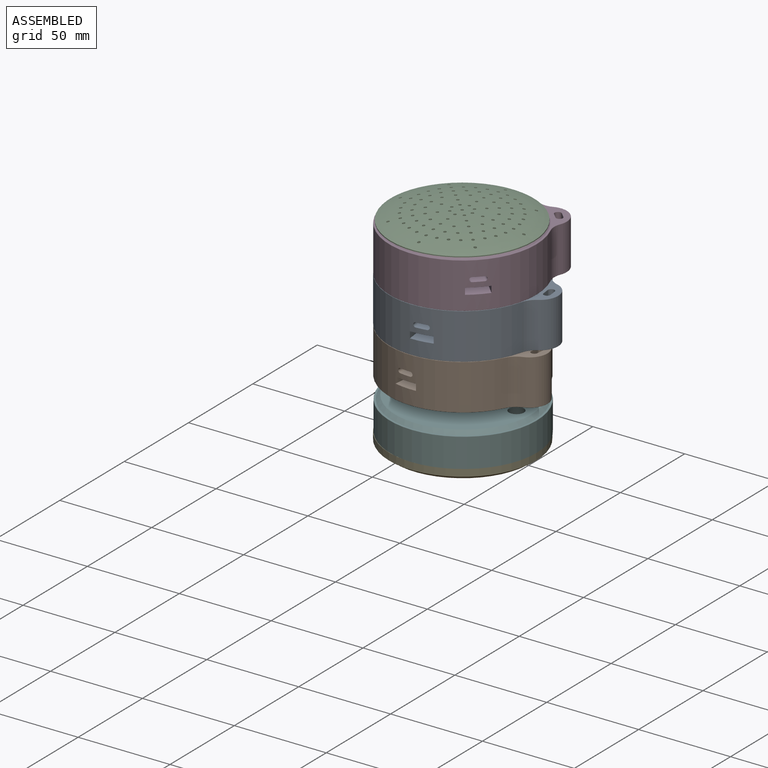
[diagram: assembled view]
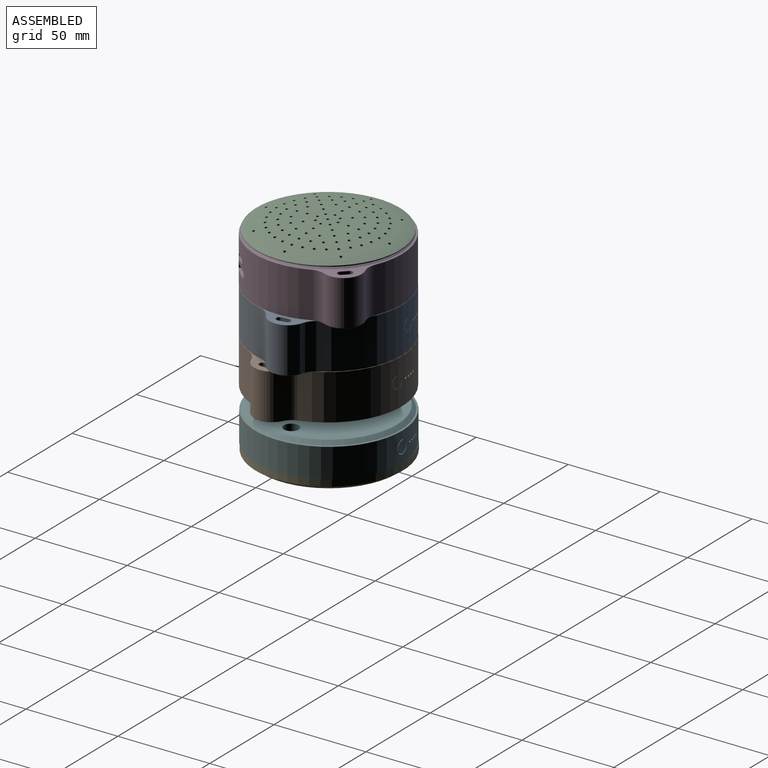
[diagram: assembled view, second angle]
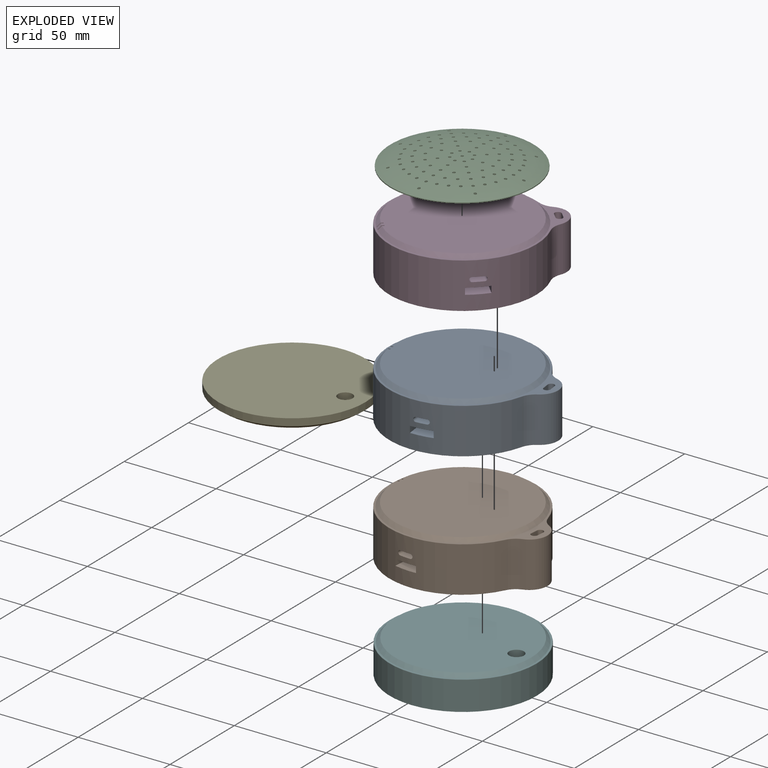
[diagram: exploded view]
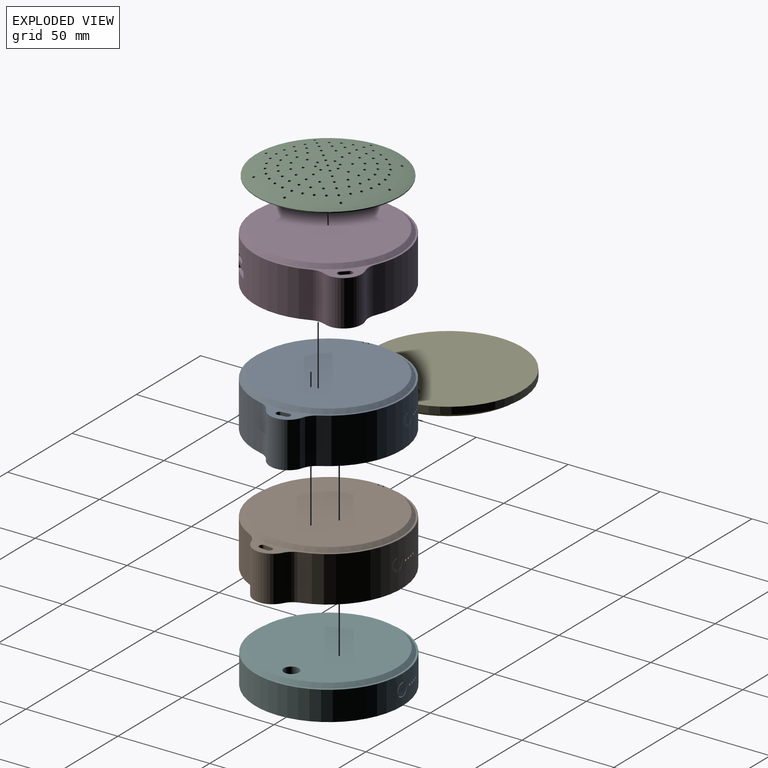
[diagram: exploded view, second angle]
ASSEMBLY  parts=6 mates=4
PART A: 60 faces, bbox 92.9x86.6x27 mm
  f0: cylinder r=40mm len=7.2mm, axis (0,0,-1), area 40.8mm2, adj f1
  f1: cylinder r=3.6mm len=40mm, axis (0,-1,0), area 902.9mm2, adj f0,f2
  f2: plane 7.2x7.2mm, normal (0,1,0), area 6.5mm2, adj f1,f3
  f3: cylinder r=3.3mm len=40mm, axis (0,-1,0), area 828mm2, adj f2,f4
  f4: cylinder r=40mm len=6.6mm, axis (0,0,-1), area 34.2mm2, adj f3
  f5: cylinder r=40mm len=80mm, axis (0,0,-1), area 5372.9mm2, adj f6,f7,f8,f9,f10,f11,f12,f13
  f6: cylinder r=10mm len=24.6mm, axis (0,0,1), area 195.7mm2, adj f5,f22,f23,f24
  f7: torus R=39.8mm, axis (0,0,1), area 69.3mm2, adj f5,f23,f25,f26
  f8: cylinder r=10mm len=24.6mm, axis (0,0,1), area 195.7mm2, adj f5,f22,f25,f27
  f9: torus R=39.8mm, axis (0,0,1), area 69.3mm2, adj f5,f24,f27,f28
  f10: cylinder r=1.25mm len=17.39mm, axis (0,1,0), area 68mm2, adj f5,f11,f13,f29
  f11: plane 17.5x5.8mm, normal (0,0,-1), area 101.3mm2, adj f5,f10,f12,f29
  f12: cylinder r=1.25mm len=17.39mm, axis (0,1,0), area 68mm2, adj f5,f11,f13,f29
  f13: plane 17.5x5.8mm, normal (0,0,1), area 101.3mm2, adj f5,f10,f12,f29
  f14: cylinder r=0.6mm len=39.11mm, axis (0,-1,0), area 146.9mm2, adj f5,f30
  f15: cylinder r=0.6mm len=38.49mm, axis (0,-1,0), area 144.4mm2, adj f5,f31
  f16: cylinder r=0.6mm len=37.69mm, axis (0,-1,0), area 141.2mm2, adj f5,f32
  f17: cylinder r=0.6mm len=39.56mm, axis (0,-1,0), area 148.8mm2, adj f5,f33
  f18: plane 17.5x12mm, normal (0,0,1), area 208.2mm2, adj f5,f19,f21,f34
  f19: plane 17.05x3.5mm, normal (1,0,0), area 59.7mm2, adj f5,f18,f20,f34
  f20: plane 17.5x12mm, normal (0,0,-1), area 208.2mm2, adj f5,f19,f21,f34
  f21: plane 17.05x3.5mm, normal (-1,0,0), area 59.7mm2, adj f5,f18,f20,f34
  f22: cylinder r=10mm len=24.6mm, axis (0,0,1), area 577.2mm2, adj f6,f8,f35,f36
  f23: torus R=10.2mm, axis (0,0,1), area 2.5mm2, adj f6,f7,f26,f35
  f24: torus R=10.2mm, axis (0,0,1), area 2.5mm2, adj f6,f9,f28,f36
  f25: torus R=10.2mm, axis (0,0,1), area 2.5mm2, adj f7,f8,f26,f35
  f26: plane 88.33x79.6mm, normal (0,0,-1), area 316.3mm2, adj f7,f23,f25,f35,f37,f38,f39,f40
  f27: torus R=10.2mm, axis (0,0,1), area 2.5mm2, adj f8,f9,f28,f36
  f28: plane 88.33x79.6mm, normal (0,0,1), area 320.7mm2, adj f9,f24,f27,f36,f42,f43,f44,f45
  f29: plane 8.3x2.5mm, normal (0,-1,0), area 19.4mm2, adj f10,f11,f12,f13
  f30: plane 1.2x1.2mm, normal (0,1,0), area 1.1mm2, adj f14
  f31: plane 1.2x1.2mm, normal (0,1,0), area 1.1mm2, adj f15
  f32: plane 1.2x1.2mm, normal (0,1,0), area 1.1mm2, adj f16
  f33: plane 1.2x1.2mm, normal (0,1,0), area 1.1mm2, adj f17
  f34: plane 12x3.5mm, normal (0,-1,0), area 42mm2, adj f18,f19,f20,f21
  f35: torus R=9.8mm, axis (0,0,1), area 7.3mm2, adj f22,f23,f25,f26
  f36: torus R=9.8mm, axis (0,0,1), area 7.3mm2, adj f22,f24,f27,f28
  f37: cylinder r=0.2mm len=4mm, axis (0,-1,0), area 1.3mm2, adj f26,f38,f40,f54
  f38: torus R=1.95mm, axis (0,0,1), area 1.8mm2, adj f26,f37,f39,f55
  f39: cylinder r=0.2mm len=4mm, axis (0,1,0), area 1.3mm2, adj f26,f38,f40,f56
  f40: torus R=1.95mm, axis (0,0,1), area 1.8mm2, adj f26,f37,f39,f57
  f41: cone r=37mm half-angle=45deg, axis (0,0,-1), area 675.3mm2, adj f26,f58
  f42: torus R=1.95mm, axis (0,0,1), area 1.8mm2, adj f28,f43,f45,f57
  f43: cylinder r=0.2mm len=4mm, axis (0,-1,0), area 1.3mm2, adj f28,f42,f44,f56
  f44: torus R=1.95mm, axis (0,0,1), area 1.8mm2, adj f28,f43,f45,f55
  f45: cylinder r=0.2mm len=4mm, axis (0,1,0), area 1.3mm2, adj f28,f42,f44,f54
  f46: cone r=37mm half-angle=45deg, axis (0,0,-1), area 665.7mm2, adj f28,f47,f53,f59
  f47: plane 3.17x2mm, normal (0,1,0), area 4.3mm2, adj f28,f46,f48,f59
  f48: plane 2x0.7mm, normal (-1,0,0), area 1.4mm2, adj f28,f47,f49,f59
  f49: plane 3.19x2mm, normal (0,-1,0), area 4.4mm2, adj f28,f48,f50,f59
  f50: cone r=37mm half-angle=45deg, axis (0,0,-1), area 5.7mm2, adj f28,f49,f51,f59
  f51: plane 3.19x2mm, normal (0,1,0), area 4.4mm2, adj f28,f50,f52,f59
  f52: plane 2x0.7mm, normal (-1,0,0), area 1.4mm2, adj f28,f51,f53,f59
  f53: plane 3.17x2mm, normal (0,-1,0), area 4.3mm2, adj f28,f46,f52,f59
  f54: plane 24.6x4mm, normal (1,0,0), area 98.4mm2, adj f37,f45,f55,f57
  f55: cylinder r=1.75mm len=24.6mm, axis (0,0,1), area 135.2mm2, adj f38,f44,f54,f56
  f56: plane 24.6x4mm, normal (-1,0,0), area 98.4mm2, adj f39,f43,f55,f57
  f57: cylinder r=1.75mm len=24.6mm, axis (0,0,1), area 135.2mm2, adj f40,f42,f54,f56
  f58: plane 74x74mm, normal (0,0,-1), area 4300.8mm2, adj f41
  f59: plane 74x74mm, normal (0,0,1), area 4299.2mm2, adj f46,f47,f48,f49,f50,f51,f52,f53
PART B: same geometry as A
PART C: 100 faces, bbox 78x78x5.2 mm
  f0: revolved ~77.97x77.91mm, area -1346.4mm2, adj f1,f3,f4,f5,f6,f7,f8,f9
  f1: cylinder r=39mm len=78mm, axis (0,0,1), area 122.5mm2, adj f0,f2
  f2: plane 78x78mm, normal (0,0,-1), area 4606.9mm2, adj f1,f3,f4,f5,f6,f7,f8,f9
  f3: cylinder r=0.75mm len=5.23mm, axis (0,0,-1), area 24.6mm2, adj f0,f2
  f4: cylinder r=0.75mm len=4.36mm, axis (0,0,-1), area 20.1mm2, adj f0,f2
  f5: cylinder r=0.75mm len=4.36mm, axis (0,0,-1), area 20.1mm2, adj f0,f2
  f6: cylinder r=0.75mm len=4.36mm, axis (0,0,-1), area 20.1mm2, adj f0,f2
  f7: cylinder r=0.75mm len=4.36mm, axis (0,0,-1), area 20.1mm2, adj f0,f2
  f8: cylinder r=0.75mm len=4.36mm, axis (0,0,-1), area 20.1mm2, adj f0,f2
  f9: cylinder r=0.75mm len=4.36mm, axis (0,0,-1), area 20.1mm2, adj f0,f2
  f10: cylinder r=0.75mm len=4.36mm, axis (0,0,-1), area 20.1mm2, adj f0,f2
  f11: cylinder r=0.75mm len=4.36mm, axis (0,0,-1), area 20.1mm2, adj f0,f2
  f12: cylinder r=0.75mm len=3.56mm, axis (0,0,-1), area 16.1mm2, adj f0,f2
  f13: cylinder r=0.75mm len=3.56mm, axis (0,0,-1), area 16.1mm2, adj f0,f2
  f14: cylinder r=0.75mm len=3.56mm, axis (0,0,-1), area 16.1mm2, adj f0,f2
  f15: cylinder r=0.75mm len=3.56mm, axis (0,0,-1), area 16.1mm2, adj f0,f2
  f16: cylinder r=0.75mm len=3.56mm, axis (0,0,-1), area 16.1mm2, adj f0,f2
  f17: cylinder r=0.75mm len=3.56mm, axis (0,0,-1), area 16.1mm2, adj f0,f2
  f18: cylinder r=0.75mm len=3.56mm, axis (0,0,-1), area 16.1mm2, adj f0,f2
  f19: cylinder r=0.75mm len=3.56mm, axis (0,0,-1), area 16.1mm2, adj f0,f2
  f20: cylinder r=0.75mm len=3.56mm, axis (0,0,-1), area 16.1mm2, adj f0,f2
  f21: cylinder r=0.75mm len=3.56mm, axis (0,0,-1), area 16.1mm2, adj f0,f2
  f22: cylinder r=0.75mm len=3.56mm, axis (0,0,-1), area 16.1mm2, adj f0,f2
  f23: cylinder r=0.75mm len=3.56mm, axis (0,0,-1), area 16.1mm2, adj f0,f2
  f24: cylinder r=0.75mm len=3.56mm, axis (0,0,-1), area 16.1mm2, adj f0,f2
  f25: cylinder r=0.75mm len=3.56mm, axis (0,0,-1), area 16.1mm2, adj f0,f2
  f26: cylinder r=0.75mm len=3.56mm, axis (0,0,-1), area 16.1mm2, adj f0,f2
  f27: cylinder r=0.75mm len=3.56mm, axis (0,0,-1), area 16.1mm2, adj f0,f2
  f28: cylinder r=0.75mm len=3.56mm, axis (0,0,-1), area 16.1mm2, adj f0,f2
  f29: cylinder r=0.75mm len=3.56mm, axis (0,0,-1), area 16.1mm2, adj f0,f2
  f30: cylinder r=0.75mm len=3.56mm, axis (0,0,-1), area 16.1mm2, adj f0,f2
  f31: cylinder r=0.75mm len=3.56mm, axis (0,0,-1), area 16.1mm2, adj f0,f2
  f32: cylinder r=0.75mm len=3.56mm, axis (0,0,-1), area 16.1mm2, adj f0,f2
  f33: cylinder r=0.75mm len=3.56mm, axis (0,0,-1), area 16.1mm2, adj f0,f2
  f34: cylinder r=0.75mm len=3.56mm, axis (0,0,-1), area 16.1mm2, adj f0,f2
  f35: cylinder r=0.75mm len=3.56mm, axis (0,0,-1), area 16.1mm2, adj f0,f2
  f36: cylinder r=0.75mm len=5.18mm, axis (0,0,-1), area 24.4mm2, adj f0,f2
  f37: cylinder r=0.75mm len=5.08mm, axis (0,0,-1), area 23.8mm2, adj f0,f2
  f38: cylinder r=0.75mm len=4.83mm, axis (0,0,-1), area 22.5mm2, adj f0,f2
  f39: cylinder r=0.75mm len=4.36mm, axis (0,0,-1), area 20.1mm2, adj f0,f2
  f40: cylinder r=0.75mm len=3.56mm, axis (0,0,-1), area 16.1mm2, adj f0,f2
  f41: cylinder r=0.75mm len=2.4mm, axis (0,0,-1), area 10.4mm2, adj f0,f2
  f42: cylinder r=0.75mm len=5.18mm, axis (0,0,-1), area 24.4mm2, adj f0,f2
  f43: cylinder r=0.75mm len=5.08mm, axis (0,0,-1), area 23.8mm2, adj f0,f2
  f44: cylinder r=0.75mm len=2.4mm, axis (0,0,-1), area 10.4mm2, adj f0,f2
  f45: cylinder r=0.75mm len=3.56mm, axis (0,0,-1), area 16.1mm2, adj f0,f2
  f46: cylinder r=0.75mm len=4.36mm, axis (0,0,-1), area 20.1mm2, adj f0,f2
  f47: cylinder r=0.75mm len=4.83mm, axis (0,0,-1), area 22.5mm2, adj f0,f2
  f48: cylinder r=0.75mm len=5.08mm, axis (0,0,-1), area 23.8mm2, adj f0,f2
  f49: cylinder r=0.75mm len=5.18mm, axis (0,0,-1), area 24.4mm2, adj f0,f2
  f50: cylinder r=0.75mm len=2.4mm, axis (0,0,-1), area 10.4mm2, adj f0,f2
  f51: cylinder r=0.75mm len=3.56mm, axis (0,0,-1), area 16.1mm2, adj f0,f2
  f52: cylinder r=0.75mm len=5.08mm, axis (0,0,-1), area 23.8mm2, adj f0,f2
  f53: cylinder r=0.75mm len=5.18mm, axis (0,0,-1), area 24.4mm2, adj f0,f2
  f54: cylinder r=0.75mm len=2.4mm, axis (0,0,-1), area 10.4mm2, adj f0,f2
  f55: cylinder r=0.75mm len=3.56mm, axis (0,0,-1), area 16.1mm2, adj f0,f2
  f56: cylinder r=0.75mm len=4.36mm, axis (0,0,-1), area 20.1mm2, adj f0,f2
  f57: cylinder r=0.75mm len=4.83mm, axis (0,0,-1), area 22.5mm2, adj f0,f2
  f58: cylinder r=0.75mm len=5.08mm, axis (0,0,-1), area 23.8mm2, adj f0,f2
  f59: cylinder r=0.75mm len=5.18mm, axis (0,0,-1), area 24.4mm2, adj f0,f2
  f60: cylinder r=0.75mm len=4.83mm, axis (0,0,-1), area 22.5mm2, adj f0,f2
  f61: cylinder r=0.75mm len=4.36mm, axis (0,0,-1), area 20.1mm2, adj f0,f2
  f62: cylinder r=0.75mm len=3.56mm, axis (0,0,-1), area 16.1mm2, adj f0,f2
  f63: cylinder r=0.75mm len=2.4mm, axis (0,0,-1), area 10.4mm2, adj f0,f2
  f64: cylinder r=0.75mm len=5.18mm, axis (0,0,-1), area 24.4mm2, adj f0,f2
  f65: cylinder r=0.75mm len=5.08mm, axis (0,0,-1), area 23.8mm2, adj f0,f2
  f66: cylinder r=0.75mm len=4.83mm, axis (0,0,-1), area 22.5mm2, adj f0,f2
  f67: cylinder r=0.75mm len=4.36mm, axis (0,0,-1), area 20.1mm2, adj f0,f2
  f68: cylinder r=0.75mm len=4.83mm, axis (0,0,-1), area 22.5mm2, adj f0,f2
  f69: cylinder r=0.75mm len=4.83mm, axis (0,0,-1), area 22.5mm2, adj f0,f2
  f70: cylinder r=0.75mm len=4.83mm, axis (0,0,-1), area 22.5mm2, adj f0,f2
  f71: cylinder r=0.75mm len=4.83mm, axis (0,0,-1), area 22.5mm2, adj f0,f2
  f72: cylinder r=0.75mm len=4.83mm, axis (0,0,-1), area 22.5mm2, adj f0,f2
  f73: cylinder r=0.75mm len=4.83mm, axis (0,0,-1), area 22.5mm2, adj f0,f2
  f74: cylinder r=0.75mm len=4.83mm, axis (0,0,-1), area 22.5mm2, adj f0,f2
  f75: cylinder r=0.75mm len=4.83mm, axis (0,0,-1), area 22.5mm2, adj f0,f2
  f76: cylinder r=0.75mm len=4.36mm, axis (0,0,-1), area 20.1mm2, adj f0,f2
  f77: cylinder r=0.75mm len=4.36mm, axis (0,0,-1), area 20.1mm2, adj f0,f2
  f78: cylinder r=0.75mm len=4.36mm, axis (0,0,-1), area 20.1mm2, adj f0,f2
  f79: cylinder r=0.75mm len=4.36mm, axis (0,0,-1), area 20.1mm2, adj f0,f2
  f80: cylinder r=0.75mm len=4.36mm, axis (0,0,-1), area 20.1mm2, adj f0,f2
  f81: cylinder r=0.75mm len=4.36mm, axis (0,0,-1), area 20.1mm2, adj f0,f2
  f82: cylinder r=0.75mm len=4.36mm, axis (0,0,-1), area 20.1mm2, adj f0,f2
  f83: cylinder r=0.75mm len=4.36mm, axis (0,0,-1), area 20.1mm2, adj f0,f2
  f84: cylinder r=0.75mm len=4.83mm, axis (0,0,-1), area 22.5mm2, adj f0,f2
  f85: cylinder r=0.75mm len=4.36mm, axis (0,0,-1), area 20.1mm2, adj f0,f2
  f86: cylinder r=0.75mm len=3.56mm, axis (0,0,-1), area 16.1mm2, adj f0,f2
  f87: cylinder r=0.75mm len=2.4mm, axis (0,0,-1), area 10.4mm2, adj f0,f2
  f88: cylinder r=0.75mm len=5.18mm, axis (0,0,-1), area 24.4mm2, adj f0,f2
  f89: cylinder r=0.75mm len=5.08mm, axis (0,0,-1), area 23.8mm2, adj f0,f2
  f90: cylinder r=0.75mm len=4.83mm, axis (0,0,-1), area 22.5mm2, adj f0,f2
  f91: cylinder r=0.75mm len=4.36mm, axis (0,0,-1), area 20.1mm2, adj f0,f2
  f92: cylinder r=0.75mm len=3.56mm, axis (0,0,-1), area 16.1mm2, adj f0,f2
  f93: cylinder r=0.75mm len=2.4mm, axis (0,0,-1), area 10.4mm2, adj f0,f2
  f94: cylinder r=0.75mm len=5.18mm, axis (0,0,-1), area 24.4mm2, adj f0,f2
  f95: cylinder r=0.75mm len=5.08mm, axis (0,0,-1), area 23.8mm2, adj f0,f2
  f96: cylinder r=0.75mm len=4.83mm, axis (0,0,-1), area 22.5mm2, adj f0,f2
  f97: cylinder r=0.75mm len=4.36mm, axis (0,0,-1), area 20.1mm2, adj f0,f2
  f98: cylinder r=0.75mm len=3.56mm, axis (0,0,-1), area 16.1mm2, adj f0,f2
  f99: cylinder r=0.75mm len=2.4mm, axis (0,0,-1), area 10.4mm2, adj f0,f2
PART D: same geometry as A
PART E: 8 faces, bbox 86.6x86.6x6 mm
  f0: plane 80x80mm, normal (0,0,1), area 4976.3mm2, adj f3,f7
  f1: plane 79.6x79.6mm, normal (0,0,-1), area 198mm2, adj f2,f4
  f2: torus R=39.8mm, axis (0,0,1), area 78.8mm2, adj f1,f3
  f3: cylinder r=40mm len=80mm, axis (0,0,-1), area 955mm2, adj f0,f2
  f4: cone r=37mm half-angle=45deg, axis (0,0,1), area 675.3mm2, adj f1,f5
  f5: plane 74x74mm, normal (0,0,-1), area 4245.4mm2, adj f4,f6
  f6: torus R=4.2mm, axis (0,0,-1), area 8mm2, adj f5,f7
  f7: cylinder r=4mm len=8mm, axis (0,0,1), area 145.8mm2, adj f0,f6
PART F: 20 faces, bbox 86.6x86.6x18 mm
  f0: cylinder r=40mm len=80mm, axis (0,0,-1), area 3925.2mm2, adj f4,f5,f8,f11,f13,f15,f19
  f1: plane 79.6x79.6mm, normal (0,0,1), area 198mm2, adj f3,f4
  f2: plane 74x74mm, normal (0,0,1), area 4245.4mm2, adj f3,f18
  f3: cone r=37mm half-angle=45deg, axis (0,0,-1), area 675.3mm2, adj f1,f2
  f4: torus R=39.8mm, axis (0,0,1), area 78.8mm2, adj f0,f1
  f5: cylinder r=0.6mm len=39.56mm, axis (0,-1,0), area 148.8mm2, adj f0,f6
  f6: plane 1.2x1.2mm, normal (0,1,0), area 1.1mm2, adj f5
  f7: cylinder r=3.3mm len=40mm, axis (0,-1,0), area 828mm2, adj f9,f10
  f8: cylinder r=3.6mm len=40mm, axis (0,-1,0), area 902.9mm2, adj f0,f9
  f9: plane 7.2x7.2mm, normal (0,1,0), area 6.5mm2, adj f7,f8
  f10: cylinder r=40mm len=6.6mm, axis (0,0,-1), area 34.2mm2, adj f7
  f11: cylinder r=0.6mm len=37.69mm, axis (0,-1,0), area 141.2mm2, adj f0,f12
  f12: plane 1.2x1.2mm, normal (0,1,0), area 1.1mm2, adj f11
  f13: cylinder r=0.6mm len=38.49mm, axis (0,-1,0), area 144.4mm2, adj f0,f14
  f14: plane 1.2x1.2mm, normal (0,1,0), area 1.1mm2, adj f13
  f15: cylinder r=0.6mm len=39.11mm, axis (0,-1,0), area 146.9mm2, adj f0,f16
  f16: plane 1.2x1.2mm, normal (0,1,0), area 1.1mm2, adj f15
  f17: cylinder r=4mm len=17.8mm, axis (0,0,1), area 447.4mm2, adj f18,f19
  f18: torus R=4.2mm, axis (0,0,1), area 8mm2, adj f2,f17
  f19: plane 80x80mm, normal (0,0,-1), area 4976.3mm2, adj f0,f17
PLACE A rot(axis=(0,0,1),7.4deg) t=(5.44,-1.54,-9.31)mm
PLACE B rot(axis=(0,0,-1),5.1deg) t=(5.43,-1.54,-34.31)mm
PLACE C t=(5.29,-1.9,39.68)mm
PLACE D rot(axis=(0,0,1),45deg) t=(5.45,-1.54,15.69)mm
PLACE E t=(5.18,-1.33,-66.06)mm
PLACE F t=(5.47,-1.33,-66.06)mm
MATE fastened F.f19 <-> E.f2  axis (0,0,-1) through (5.18,-1.33,-62.06)mm
MATE cylindrical D.f41 <-> A.f59  axis (0,0,-1) through (5.45,-1.54,17.69)mm
MATE cylindrical D.f41 <-> A.f59  axis (0,0,-1) through (5.45,-1.54,17.69)mm
MATE cylindrical A.f41 <-> B.f59  axis (0,0,-1) through (5.44,-1.54,-7.31)mm
